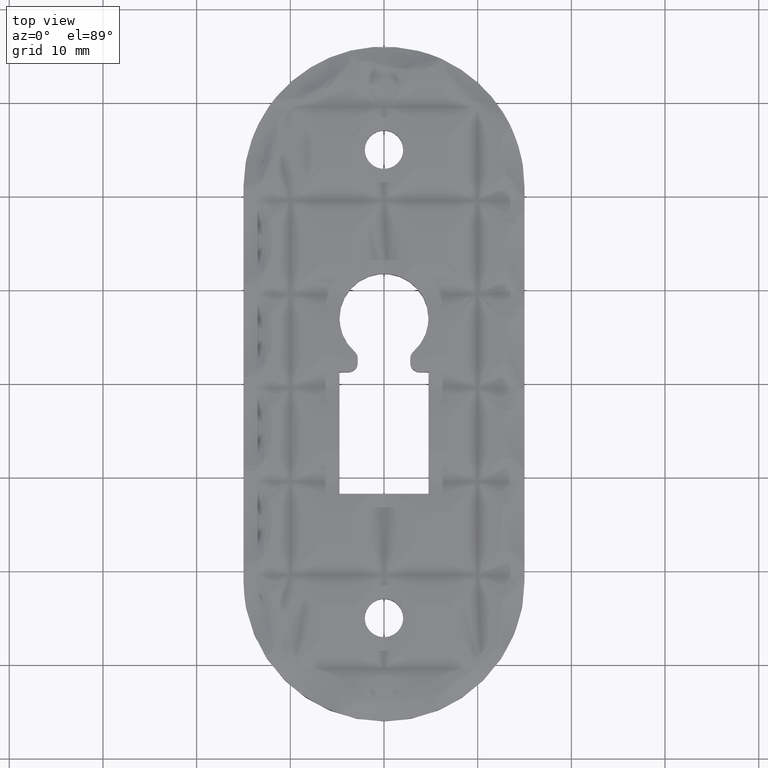
[diagram: clean part render]
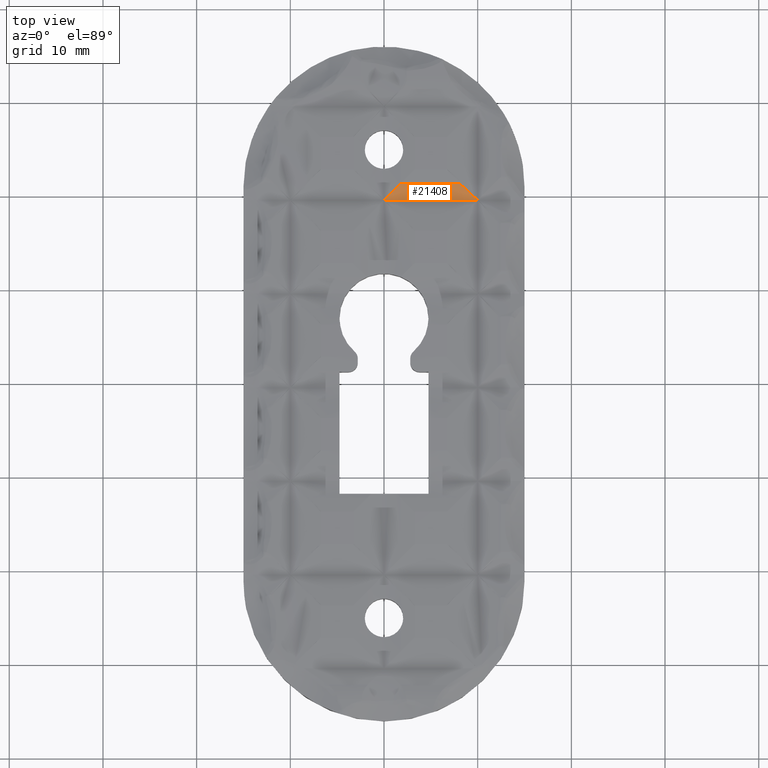
[diagram: same view with one face highlighted and labeled with its STEP entity id]
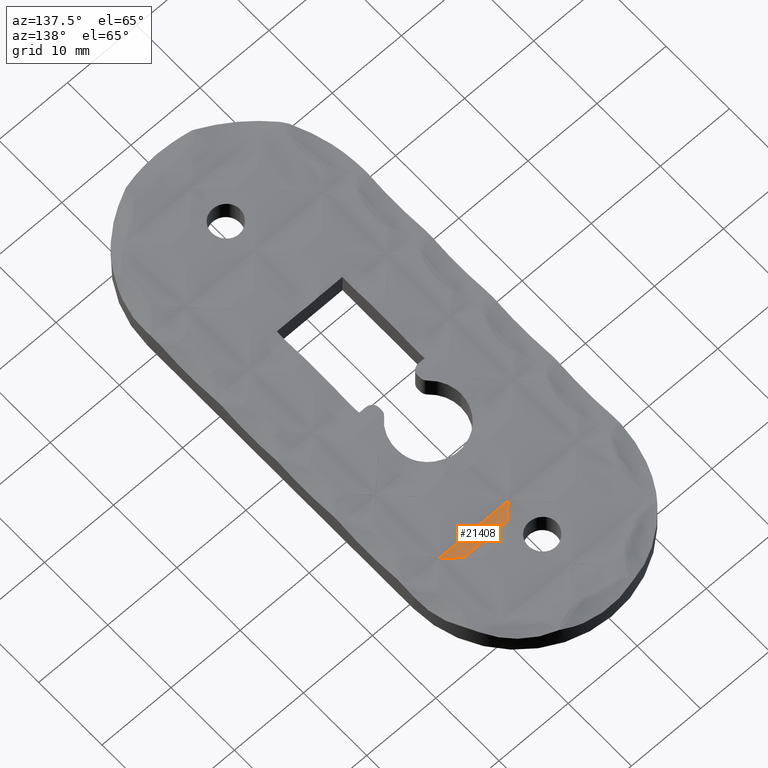
[diagram: same view with one face highlighted and labeled with its STEP entity id]
A machine part, top view. The second image highlights one B-rep face of the part: STEP entity #21408.
A second angle (auxiliary view) of the same face is appended — the face is thin or edge-on in the first view.
In plain terms, the highlighted cylindrical surface (partial cylindrical patch) has radius 11.5625 mm, axis along (1, 0, 0).
Its self-contained STEP definition (entity closure, byte-faithful):
#66 = CARTESIAN_POINT ( 'NONE',  ( 1.755596491258062200, 21.37240040778775500, 3.384057971014494000 ) ) ;
#1355 = CARTESIAN_POINT ( 'NONE',  ( 8.092568136524999300, 21.37240040778776500, 3.384057971014495300 ) ) ;
#1605 = VECTOR ( 'NONE', #7168, 1000.000000000000000 ) ;
#2206 = ORIENTED_EDGE ( 'NONE', *, *, #2248, .T. ) ;
#2248 = EDGE_CURVE ( 'NONE', #7906, #3669, #23816, .T. ) ;
#2310 = CARTESIAN_POINT ( 'NONE',  ( 8.493403986215589900E-016, 19.61680391652970100, 3.250000000000002700 ) ) ;
#2353 = EDGE_CURVE ( 'NONE', #7906, #10815, #20782, .T. ) ;
#3443 = CARTESIAN_POINT ( 'NONE',  ( -15.00000000000000000, 21.37240040778775800, 3.384057971014494000 ) ) ;
#3669 = VERTEX_POINT ( 'NONE', #2310 ) ;
#4561 = CARTESIAN_POINT ( 'NONE',  ( -15.00000000000000000, 19.61680391652970100, 14.81250000000000000 ) ) ;
#5147 = CARTESIAN_POINT ( 'NONE',  ( 10.00000000000001100, 19.61680391652969400, 3.250000000000002700 ) ) ;
#6348 = AXIS2_PLACEMENT_3D ( 'NONE', #4561, #17543, #6412 ) ;
#6412 = DIRECTION ( 'NONE',  ( 0.0000000000000000000, 0.0000000000000000000, -1.000000000000000000 ) ) ;
#6522 = CARTESIAN_POINT ( 'NONE',  ( 1.174373920072590000, 20.79117783660229100, 3.294772633255837100 ) ) ;
#6675 = CARTESIAN_POINT ( 'NONE',  ( 8.723450933166674300, 20.79173713724078700, 3.294858551024507400 ) ) ;
#7168 = DIRECTION ( 'NONE',  ( 1.000000000000000000, 0.0000000000000000000, 0.0000000000000000000 ) ) ;
#7573 = VERTEX_POINT ( 'NONE', #8565 ) ;
#7906 = VERTEX_POINT ( 'NONE', #66 ) ;
#8407 = CARTESIAN_POINT ( 'NONE',  ( 8.493403986215589900E-016, 19.61680391652970100, 3.250000000000002700 ) ) ;
#8554 = ORIENTED_EDGE ( 'NONE', *, *, #2353, .F. ) ;
#8565 = CARTESIAN_POINT ( 'NONE',  ( 10.00000000000001100, 19.61680391652969400, 3.250000000000002700 ) ) ;
#8599 = B_SPLINE_CURVE_WITH_KNOTS ( 'NONE', 3,
 ( #1355, #6675, #16248, #5147 ),
 .UNSPECIFIED., .F., .F.,
 ( 4, 4 ),
 ( 0.0000000000000000000, 1.000000000000000000 ),
 .UNSPECIFIED. ) ;
#8841 = CARTESIAN_POINT ( 'NONE',  ( 8.092568136524999300, 21.37240040778776500, 3.384057971014495300 ) ) ;
#9201 = CYLINDRICAL_SURFACE ( 'NONE', #6348, 11.56249999999999600 ) ;
#9755 = FACE_OUTER_BOUND ( 'NONE', #19478, .T. ) ;
#10815 = VERTEX_POINT ( 'NONE', #8841 ) ;
#11035 = DIRECTION ( 'NONE',  ( 1.000000000000000000, 0.0000000000000000000, 0.0000000000000000000 ) ) ;
#11555 = EDGE_CURVE ( 'NONE', #3669, #7573, #19858, .T. ) ;
#11877 = ORIENTED_EDGE ( 'NONE', *, *, #11555, .T. ) ;
#14318 = VECTOR ( 'NONE', #11035, 1000.000000000000000 ) ;
#15929 = EDGE_CURVE ( 'NONE', #10815, #7573, #8599, .T. ) ;
#16248 = CARTESIAN_POINT ( 'NONE',  ( 9.361715183509122800, 20.20427999141251600, 3.250000000000003600 ) ) ;
#17543 = DIRECTION ( 'NONE',  ( 1.000000000000000000, 0.0000000000000000000, 0.0000000000000000000 ) ) ;
#17652 = CARTESIAN_POINT ( 'NONE',  ( 1.755596491258062200, 21.37240040778775500, 3.384057971014494000 ) ) ;
#19478 = EDGE_LOOP ( 'NONE', ( #2206, #11877, #22388, #8554 ) ) ;
#19513 = CARTESIAN_POINT ( 'NONE',  ( 0.5880404312580227400, 20.20484434778772000, 3.250000000000002700 ) ) ;
#19858 = LINE ( 'NONE', #23966, #14318 ) ;
#20782 = LINE ( 'NONE', #3443, #1605 ) ;
#21408 = ADVANCED_FACE ( 'NONE', ( #9755 ), #9201, .F. ) ;
#22388 = ORIENTED_EDGE ( 'NONE', *, *, #15929, .F. ) ;
#23816 =( BOUNDED_CURVE ( )  B_SPLINE_CURVE ( 3, ( #17652, #6522, #19513, #8407 ),
 .UNSPECIFIED., .F., .T. ) 
 B_SPLINE_CURVE_WITH_KNOTS ( ( 4, 4 ),
 ( 1.418371416207590000, 1.570796326794896800 ),
 .UNSPECIFIED. ) 
 CURVE ( )  GEOMETRIC_REPRESENTATION_ITEM ( )  RATIONAL_B_SPLINE_CURVE ( ( 1.000000000000000000, 0.9980648241711250800, 0.9980648241711250800, 1.000000000000000000 ) ) 
 REPRESENTATION_ITEM ( '' )  );
#23966 = CARTESIAN_POINT ( 'NONE',  ( -15.00000000000000000, 19.61680391652970100, 3.250000000000002700 ) ) ;